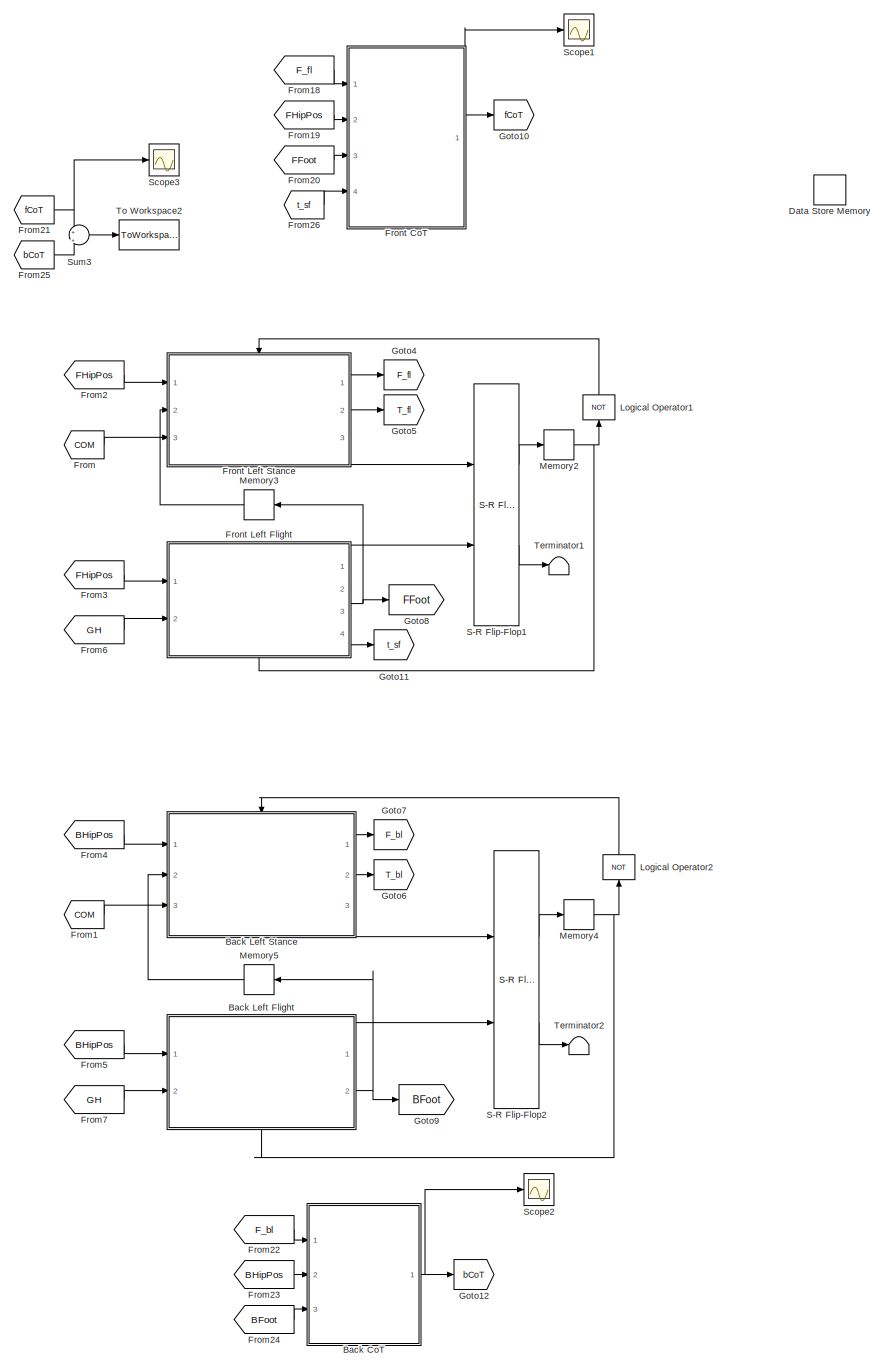
[diagram: root canvas - part 1/2, right side, full height]
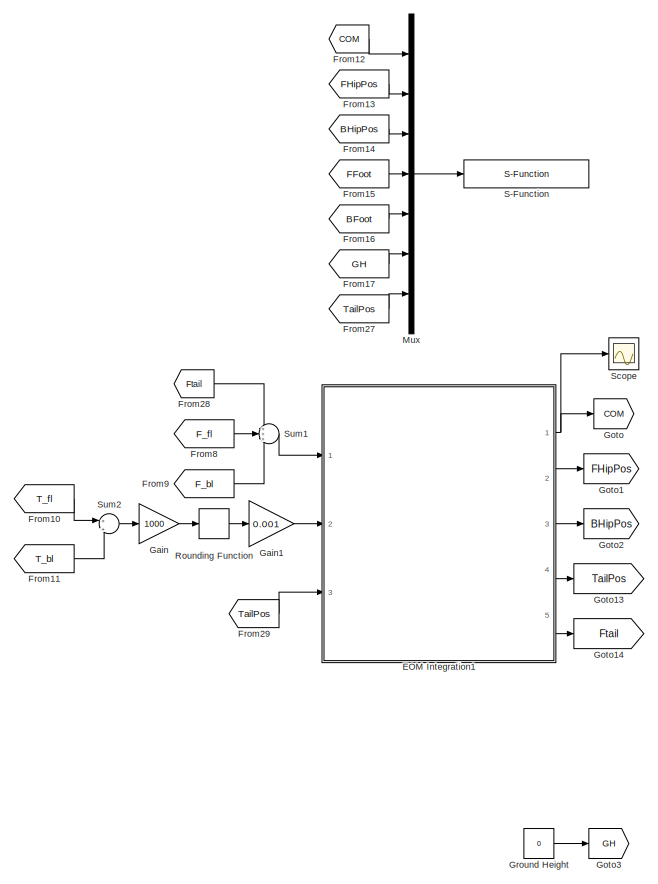
[diagram: root canvas - part 2/2, middle left region]
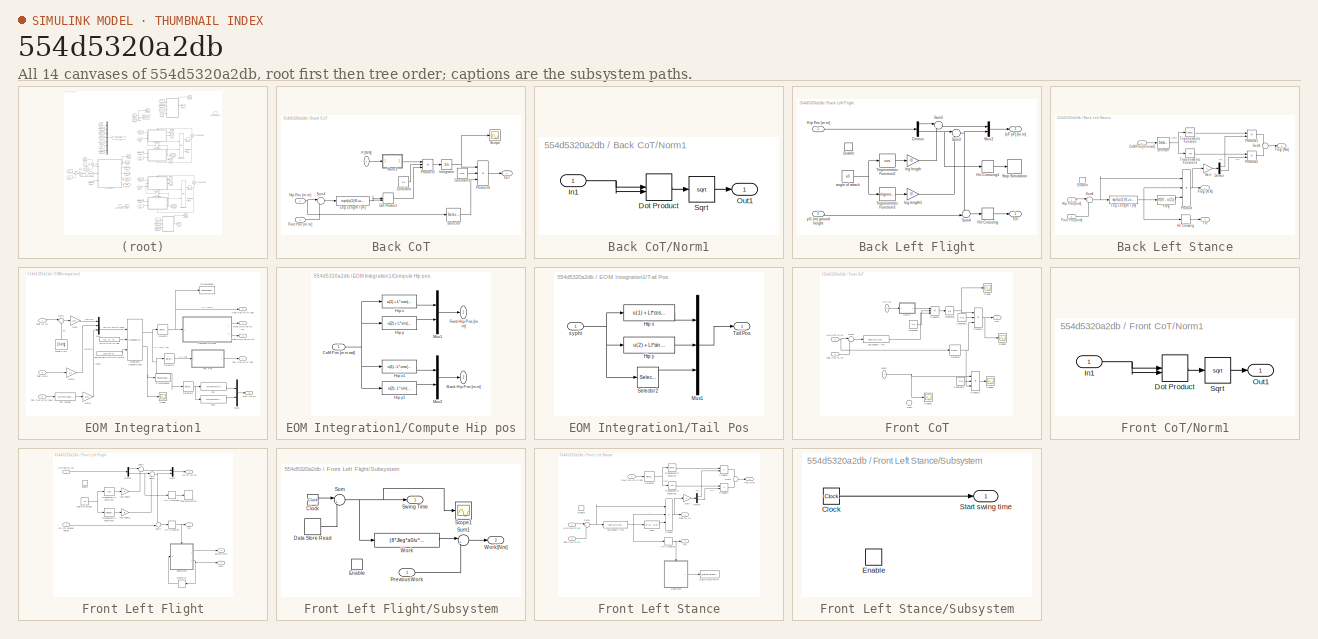
[diagram: thumbnail index - all 14 canvases of the model, root first then tree order]
MODEL slx_554d5320a2db
KIND model
CONFIG AbsTol = 1e-6
CONFIG FixedStep = auto
CONFIG MaxStep = 1e-3
CONFIG MinStep = auto
CONFIG RelTol = 1e-4
CONFIG SampleTimeConstraint = Unconstrained
CONFIG Solver = ode45
CONFIG SolverMode = Auto
CONFIG SolverName = ode45
CONFIG StartTime = 0.0
CONFIG StopTime = 100
BLOCK [SubSystem] Back CoT
  Ports = [3, 1]
  RequestExecContextInheritance = off
BLOCK [Outport] Back CoT/CoT
  IconDisplay = Port number
BLOCK [Constant] Back CoT/Constant
  Value = 0.5
BLOCK [Constant] Back CoT/Constant1
  Value = m*g
BLOCK [DotProduct] Back CoT/Dot Product
  OutDataTypeStr = Inherit: Inherit via internal rule
BLOCK [Inport] Back CoT/F [N N]
  IconDisplay = Port number
BLOCK [Inport] Back CoT/Foot Pos [m m]
  IconDisplay = Port number
  Port = 3
BLOCK [Inport] Back CoT/Hip Pos [m m]
  IconDisplay = Port number
  Port = 2
BLOCK [Integrator] Back CoT/Integrator
  Ports = [1, 1]
BLOCK [Fcn] Back CoT/Leg Length l [m]
  Expr = sqrt(u(1)^2+u(2)^2)
BLOCK [SubSystem] Back CoT/Norm1
  Ports = [1, 1]
  RequestExecContextInheritance = off
BLOCK [DotProduct] Back CoT/Norm1/Dot Product
  OutDataTypeStr = Inherit: Inherit via internal rule
BLOCK [Inport] Back CoT/Norm1/In1
  IconDisplay = Port number
BLOCK [Outport] Back CoT/Norm1/Out1
  IconDisplay = Port number
BLOCK [Sqrt] Back CoT/Norm1/Sqrt
BLOCK [Product] Back CoT/Product3
  InputSameDT = off
  Inputs = 3
  OutDataTypeStr = Inherit: Inherit via internal rule
  Ports = [3, 1]
  RndMeth = Floor
  SaturateOnIntegerOverflow = off
BLOCK [Product] Back CoT/Product4
  InputSameDT = off
  Inputs = *//
  OutDataTypeStr = Inherit: Inherit via internal rule
  Ports = [3, 1]
  RndMeth = Floor
  SaturateOnIntegerOverflow = off
BLOCK [Scope] Back CoT/Scope
  Floating = off
  LimitDataPoints = off
  NumInputPorts = 1
  Ports = [1]
  SaveName = ScopeData3
BLOCK [Selector] Back CoT/Selector
  Indices = [1]
  InputPortWidth = 2
  Ports = [1, 1]
BLOCK [Sum] Back CoT/Sum4
  IconShape = round
  InputSameDT = off
  Inputs = |+-
  OutDataTypeStr = Inherit: Inherit via internal rule
  Ports = [2, 1]
  SaturateOnIntegerOverflow = off
BLOCK [SubSystem] Back Left Flight
  Ports = [2, 2, 1]
  RequestExecContextInheritance = off
BLOCK [Outport] Back Left Flight/(xF yF) [m m]
  AttributesFormatString = %<OutputWhenDisabled>
  IconDisplay = Port number
  InitialOutput = [0 0]
  Port = 2
BLOCK [Demux] Back Left Flight/Demux
  DisplayOption = bar
  Outputs = 2
  Ports = [1, 2]
BLOCK [EnablePort] Back Left Flight/Enable
  Ports = []
  StatesWhenEnabling = reset
BLOCK [Inport] Back Left Flight/Hip Pos [m m]
  IconDisplay = Port number
BLOCK [HitCross] Back Left Flight/Hit Crossing
  HitCrossingDirection = falling
  Ports = [1, 1]
BLOCK [HitCross] Back Left Flight/Hit Crossing1
  HitCrossingDirection = falling
  Ports = [1, 1]
BLOCK [Mux] Back Left Flight/Mux2
  DisplayOption = bar
  Inputs = 2
  Ports = [2, 1]
BLOCK [Stop] Back Left Flight/Stop Simulation
BLOCK [Sum] Back Left Flight/Sum2
  IconShape = round
  InputSameDT = off
  Inputs = |++
  OutDataTypeStr = Inherit: Inherit via internal rule
  Ports = [2, 1]
  SaturateOnIntegerOverflow = off
BLOCK [Sum] Back Left Flight/Sum3
  IconShape = round
  InputSameDT = off
  Inputs = |+-
  OutDataTypeStr = Inherit: Inherit via internal rule
  Ports = [2, 1]
  SaturateOnIntegerOverflow = off
BLOCK [Sum] Back Left Flight/Sum4
  IconShape = round
  InputSameDT = off
  Inputs = +-|
  OutDataTypeStr = Inherit: Inherit via internal rule
  Ports = [2, 1]
  SaturateOnIntegerOverflow = off
BLOCK [Outport] Back Left Flight/TO!
  AttributesFormatString = %<OutputWhenDisabled>
  IconDisplay = Port number
  InitialOutput = 0
  OutputWhenDisabled = reset
BLOCK [Trigonometry] Back Left Flight/Trigonometric Function2
  Operator = cos
  Ports = [1, 1]
BLOCK [Trigonometry] Back Left Flight/Trigonometric Function3
  Ports = [1, 1]
BLOCK [Constant] Back Left Flight/angle of attack
  Value = a0
BLOCK [Gain] Back Left Flight/leg length
  Gain = l0
  OutDataTypeStr = Inherit: Inherit via internal rule
  ParamDataTypeStr = Inherit: Inherit via internal rule
  SaturateOnIntegerOverflow = off
BLOCK [Gain] Back Left Flight/leg length1
  Gain = l0
  OutDataTypeStr = Inherit: Inherit via internal rule
  ParamDataTypeStr = Inherit: Inherit via internal rule
  SaturateOnIntegerOverflow = off
BLOCK [Inport] Back Left Flight/yG [m] ground height
  IconDisplay = Port number
  Port = 2
BLOCK [SubSystem] Back Left Stance
  Ports = [3, 3, 1]
  RequestExecContextInheritance = off
BLOCK [Inport] Back Left Stance/CoM Pos [m m rad]
  IconDisplay = Port number
  Port = 3
BLOCK [Demux] Back Left Stance/Demux
  DisplayOption = bar
  Outputs = 2
  Ports = [1, 2]
BLOCK [EnablePort] Back Left Stance/Enable
  Ports = []
  StatesWhenEnabling = reset
BLOCK [Fcn] Back Left Stance/Fleg
  Expr = k*(l0 - u(1))
BLOCK [Outport] Back Left Stance/Fleg [N N]
  AttributesFormatString = %<OutputWhenDisabled>
  IconDisplay = Port number
  InitialOutput = [0 0]
  OutputWhenDisabled = reset
BLOCK [Inport] Back Left Stance/Foot Pos [m m]
  IconDisplay = Port number
  Port = 2
BLOCK [Gain] Back Left Stance/Gain
  Gain = -L
  OutDataTypeStr = Inherit: Inherit via internal rule
  ParamDataTypeStr = Inherit: Inherit via internal rule
  SaturateOnIntegerOverflow = off
BLOCK [Inport] Back Left Stance/Hip Pos [m m]
  IconDisplay = Port number
BLOCK [HitCross] Back Left Stance/Hit Crossing
  HitCrossingDirection = rising
  HitCrossingOffset = l0
  Ports = [1, 1]
BLOCK [Fcn] Back Left Stance/Leg Length l [m]
  Expr = sqrt(u(1)^2+u(2)^2)
BLOCK [Product] Back Left Stance/Product
  InputSameDT = off
  Inputs = */*
  OutDataTypeStr = Inherit: Inherit via internal rule
  Ports = [3, 1]
  RndMeth = Floor
  SaturateOnIntegerOverflow = off
BLOCK [Product] Back Left Stance/Product1
  InputSameDT = off
  OutDataTypeStr = Inherit: Inherit via internal rule
  Ports = [2, 1]
  RndMeth = Floor
  SaturateOnIntegerOverflow = off
BLOCK [Product] Back Left Stance/Product2
  InputSameDT = off
  OutDataTypeStr = Inherit: Inherit via internal rule
  Ports = [2, 1]
  RndMeth = Floor
  SaturateOnIntegerOverflow = off
BLOCK [Selector] Back Left Stance/Selector
  Indices = [3]
  InputPortWidth = 3
  Ports = [1, 1]
BLOCK [Sum] Back Left Stance/Sum1
  IconShape = round
  InputSameDT = off
  Inputs = +|+
  OutDataTypeStr = Inherit: Inherit via internal rule
  Ports = [2, 1]
  SaturateOnIntegerOverflow = off
BLOCK [Sum] Back Left Stance/Sum4
  IconShape = round
  InputSameDT = off
  Inputs = |+-
  OutDataTypeStr = Inherit: Inherit via internal rule
  Ports = [2, 1]
  SaturateOnIntegerOverflow = off
BLOCK [Outport] Back Left Stance/TO!
  AttributesFormatString = %<OutputWhenDisabled>
  IconDisplay = Port number
  InitialOutput = [0]
  OutputWhenDisabled = reset
  Port = 3
BLOCK [Outport] Back Left Stance/Tleg [Nm]
  AttributesFormatString = %<OutputWhenDisabled>
  IconDisplay = Port number
  InitialOutput = [0]
  OutputWhenDisabled = reset
  Port = 2
BLOCK [Trigonometry] Back Left Stance/Trigonometric Function
  Ports = [1, 1]
BLOCK [Trigonometry] Back Left Stance/Trigonometric Function1
  Operator = cos
  Ports = [1, 1]
BLOCK [DataStoreMemory] Data Store Memory
  DataStoreName = Swing_time
  ReadBeforeWriteMsg = warning
  WriteAfterReadMsg = warning
  WriteAfterWriteMsg = warning
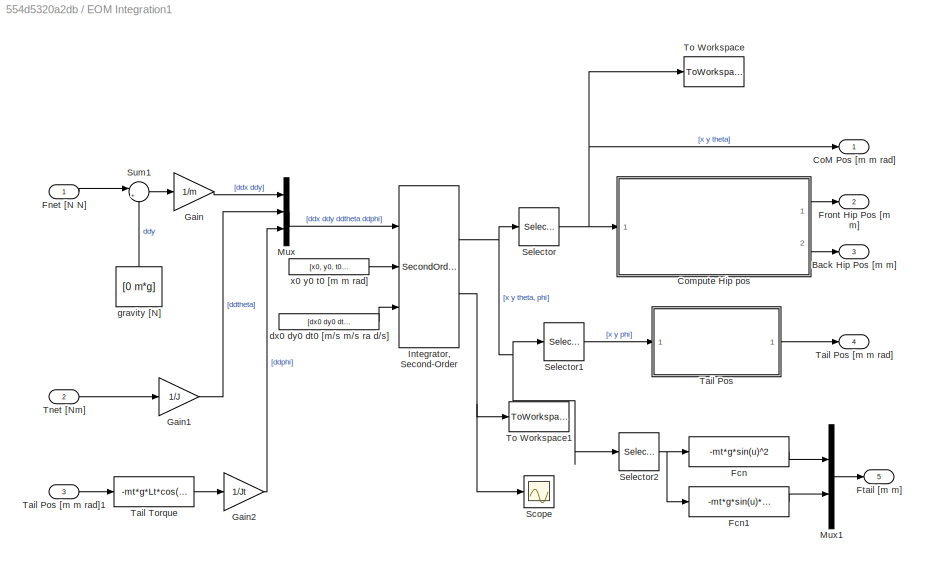
BLOCK [SubSystem] EOM Integration1
  Ports = [3, 5]
  RequestExecContextInheritance = off
BLOCK [Outport] EOM Integration1/Back Hip Pos [m m]
  IconDisplay = Port number
  Port = 3
BLOCK [Outport] EOM Integration1/CoM Pos [m m rad]
  IconDisplay = Port number
BLOCK [SubSystem] EOM Integration1/Compute Hip pos
  Ports = [1, 2]
  RequestExecContextInheritance = off
BLOCK [Outport] EOM Integration1/Compute Hip pos/Back Hip Pos [m m]
  IconDisplay = Port number
  Port = 2
BLOCK [Inport] EOM Integration1/Compute Hip pos/CoM Pos [m m rad]
  IconDisplay = Port number
BLOCK [Outport] EOM Integration1/Compute Hip pos/Front Hip Pos [m m]
  IconDisplay = Port number
BLOCK [Fcn] EOM Integration1/Compute Hip pos/Hip x
  Expr = u(1) + L*cos(u(3))
BLOCK [Fcn] EOM Integration1/Compute Hip pos/Hip x1
  Expr = u(1) - L*cos(u(3))
BLOCK [Fcn] EOM Integration1/Compute Hip pos/Hip y
  Expr = u(2) + L*sin(u(3))
BLOCK [Fcn] EOM Integration1/Compute Hip pos/Hip y1
  Expr = u(2) - L*sin(u(3))
BLOCK [Mux] EOM Integration1/Compute Hip pos/Mux1
  DisplayOption = bar
  Inputs = 2
  Ports = [2, 1]
BLOCK [Mux] EOM Integration1/Compute Hip pos/Mux2
  DisplayOption = bar
  Inputs = 2
  Ports = [2, 1]
BLOCK [Fcn] EOM Integration1/Fcn
  Expr = -mt*g*sin(u)^2
BLOCK [Fcn] EOM Integration1/Fcn1
  Expr = -mt*g*sin(u)*cos(u)
BLOCK [Inport] EOM Integration1/Fnet [N N]
  IconDisplay = Port number
BLOCK [Outport] EOM Integration1/Front Hip Pos [m m]
  IconDisplay = Port number
  Port = 2
BLOCK [Outport] EOM Integration1/Ftail [m m]
  IconDisplay = Port number
  Port = 5
BLOCK [Gain] EOM Integration1/Gain
  Gain = 1/m
  OutDataTypeStr = Inherit: Inherit via internal rule
  ParamDataTypeStr = Inherit: Inherit via internal rule
  SaturateOnIntegerOverflow = off
BLOCK [Gain] EOM Integration1/Gain1
  Gain = 1/J
  OutDataTypeStr = Inherit: Inherit via internal rule
  ParamDataTypeStr = Inherit: Inherit via internal rule
  SaturateOnIntegerOverflow = off
BLOCK [Gain] EOM Integration1/Gain2
  Gain = 1/Jt
  OutDataTypeStr = Inherit: Inherit via internal rule
  ParamDataTypeStr = Inherit: Inherit via internal rule
  SaturateOnIntegerOverflow = off
BLOCK [SecondOrderIntegrator] EOM Integration1/Integrator, Second-Order
  ICSourceDXDT = external
  ICSourceX = external
  Ports = [3, 2]
BLOCK [Mux] EOM Integration1/Mux
  DisplayOption = bar
  Inputs = 3
  Ports = [3, 1]
BLOCK [Mux] EOM Integration1/Mux1
  DisplayOption = bar
  Inputs = 2
  Ports = [2, 1]
BLOCK [Scope] EOM Integration1/Scope
  Floating = off
  LimitDataPoints = off
  NumInputPorts = 1
  Ports = [1]
  SaveName = ScopeData2
  TimeRange = 3.298211913921595
  YMax = 10
  YMin = -10
  ZoomMode = yonly
BLOCK [Selector] EOM Integration1/Selector
  Indices = [1 2 3]
  InputPortWidth = 4
  Ports = [1, 1]
BLOCK [Selector] EOM Integration1/Selector1
  Indices = [1 2 4]
  InputPortWidth = 4
  Ports = [1, 1]
BLOCK [Selector] EOM Integration1/Selector2
  Indices = [4]
  InputPortWidth = 4
  Ports = [1, 1]
BLOCK [Sum] EOM Integration1/Sum1
  IconShape = round
  InputSameDT = off
  Inputs = |+-
  OutDataTypeStr = Inherit: Inherit via internal rule
  Ports = [2, 1]
  SaturateOnIntegerOverflow = off
BLOCK [SubSystem] EOM Integration1/Tail Pos
  Ports = [1, 1]
  RequestExecContextInheritance = off
BLOCK [Outport] EOM Integration1/Tail Pos [m m rad]
  IconDisplay = Port number
  Port = 4
BLOCK [Inport] EOM Integration1/Tail Pos [m m rad]1
  IconDisplay = Port number
  Port = 3
BLOCK [Fcn] EOM Integration1/Tail Pos/Hip x
  Expr = u(1) + Lt*cos(u(3))
BLOCK [Fcn] EOM Integration1/Tail Pos/Hip y
  Expr = u(2) + Lt*sin(u(3))
BLOCK [Mux] EOM Integration1/Tail Pos/Mux1
  DisplayOption = bar
  Inputs = 3
  Ports = [3, 1]
BLOCK [Selector] EOM Integration1/Tail Pos/Selector2
  Indices = [3]
  InputPortWidth = 3
  Ports = [1, 1]
BLOCK [Outport] EOM Integration1/Tail Pos/Tail Pos
  IconDisplay = Port number
BLOCK [Inport] EOM Integration1/Tail Pos/x y phi
  IconDisplay = Port number
BLOCK [Fcn] EOM Integration1/Tail Torque
  Expr = -mt*g*Lt*cos(u(3))
BLOCK [Inport] EOM Integration1/Tnet [Nm]
  IconDisplay = Port number
  Port = 2
BLOCK [ToWorkspace] EOM Integration1/To Workspace
  FixptAsFi = on
  MaxDataPoints = inf
  Ports = [1]
  SampleTime = -1
  Save2DSignal = 3-D array (concatenate along third dimension)
  VariableName = pos
BLOCK [ToWorkspace] EOM Integration1/To Workspace1
  FixptAsFi = on
  MaxDataPoints = inf
  Ports = [1]
  SampleTime = -1
  Save2DSignal = 3-D array (concatenate along third dimension)
  VariableName = vel
BLOCK [Constant] EOM Integration1/dx0 dy0 dt0 [m//s m//s ra d//s]
  Value = [dx0 dy0 dt0 dphi0]
BLOCK [Constant] EOM Integration1/gravity  [N]
  Value = [0 m*g]
BLOCK [Constant] EOM Integration1/x0 y0 t0 [m m rad]
  Value = [x0, y0, t0, phi0]
BLOCK [From] From
  GotoTag = COM
BLOCK [From] From1
  GotoTag = COM
BLOCK [From] From10
  GotoTag = T_fl
BLOCK [From] From11
  GotoTag = T_bl
BLOCK [From] From12
  GotoTag = COM
BLOCK [From] From13
  GotoTag = FHipPos
BLOCK [From] From14
  GotoTag = BHipPos
BLOCK [From] From15
  GotoTag = FFoot
BLOCK [From] From16
  GotoTag = BFoot
BLOCK [From] From17
  GotoTag = GH
BLOCK [From] From18
  GotoTag = F_fl
BLOCK [From] From19
  GotoTag = FHipPos
BLOCK [From] From2
  GotoTag = FHipPos
BLOCK [From] From20
  GotoTag = FFoot
BLOCK [From] From21
  GotoTag = fCoT
BLOCK [From] From22
  GotoTag = F_bl
BLOCK [From] From23
  GotoTag = BHipPos
BLOCK [From] From24
  GotoTag = BFoot
BLOCK [From] From25
  GotoTag = bCoT
BLOCK [From] From26
  GotoTag = t_sf
BLOCK [From] From27
  GotoTag = TailPos
BLOCK [From] From28
  GotoTag = Ftail
BLOCK [From] From29
  GotoTag = TailPos
BLOCK [From] From3
  GotoTag = FHipPos
BLOCK [From] From4
  GotoTag = BHipPos
BLOCK [From] From5
  GotoTag = BHipPos
BLOCK [From] From6
  GotoTag = GH
BLOCK [From] From7
  GotoTag = GH
BLOCK [From] From8
  GotoTag = F_fl
BLOCK [From] From9
  GotoTag = F_bl
BLOCK [SubSystem] Front CoT
  Ports = [4, 1]
  RequestExecContextInheritance = off
BLOCK [Outport] Front CoT/CoT
  IconDisplay = Port number
BLOCK [Constant] Front CoT/Constant
  Value = 0.5
BLOCK [Constant] Front CoT/Constant1
  Value = m*g
BLOCK [Constant] Front CoT/Constant2
  Value = m*g
BLOCK [Inport] Front CoT/F [N N]
  IconDisplay = Port number
BLOCK [Inport] Front CoT/Foot Pos [m m]
  IconDisplay = Port number
  Port = 3
BLOCK [Inport] Front CoT/Hip Pos [m m]
  IconDisplay = Port number
  Port = 2
BLOCK [Integrator] Front CoT/Integrator
  Ports = [1, 1]
BLOCK [Fcn] Front CoT/Leg Length l [m]
  Expr = sqrt(u(1)^2+u(2)^2)
BLOCK [SubSystem] Front CoT/Norm1
  Ports = [1, 1]
  RequestExecContextInheritance = off
BLOCK [DotProduct] Front CoT/Norm1/Dot Product
  OutDataTypeStr = Inherit: Inherit via internal rule
BLOCK [Inport] Front CoT/Norm1/In1
  IconDisplay = Port number
BLOCK [Outport] Front CoT/Norm1/Out1
  IconDisplay = Port number
BLOCK [Sqrt] Front CoT/Norm1/Sqrt
BLOCK [Product] Front CoT/Product1
  InputSameDT = off
  Inputs = *//
  OutDataTypeStr = Inherit: Inherit via internal rule
  Ports = [3, 1]
  RndMeth = Floor
  SaturateOnIntegerOverflow = off
BLOCK [Product] Front CoT/Product3
  InputSameDT = off
  Inputs = 3
  OutDataTypeStr = Inherit: Inherit via internal rule
  Ports = [3, 1]
  RndMeth = Floor
  SaturateOnIntegerOverflow = off
BLOCK [Product] Front CoT/Product4
  InputSameDT = off
  Inputs = *//
  OutDataTypeStr = Inherit: Inherit via internal rule
  Ports = [3, 1]
  RndMeth = Floor
  SaturateOnIntegerOverflow = off
BLOCK [Scope] Front CoT/Scope
  Floating = off
  LimitDataPoints = off
  NumInputPorts = 1
  Ports = [1]
  SaveName = ScopeData3
BLOCK [Scope] Front CoT/Scope1
  Floating = off
  LimitDataPoints = off
  NumInputPorts = 1
  Ports = [1]
  SaveName = ScopeData8
BLOCK [Scope] Front CoT/Scope2
  Floating = off
  LimitDataPoints = off
  NumInputPorts = 1
  Ports = [1]
  SaveName = ScopeData9
BLOCK [Scope] Front CoT/Scope3
  Floating = off
  LimitDataPoints = off
  NumInputPorts = 1
  Ports = [1]
  SaveName = ScopeData10
BLOCK [Selector] Front CoT/Selector
  Indices = [1]
  InputPortWidth = 2
  Ports = [1, 1]
BLOCK [Sum] Front CoT/Sum
  IconShape = round
  InputSameDT = off
  Inputs = |++
  OutDataTypeStr = Inherit: Inherit via internal rule
  Ports = [2, 1]
  SaturateOnIntegerOverflow = off
BLOCK [Sum] Front CoT/Sum4
  IconShape = round
  InputSameDT = off
  Inputs = |+-
  OutDataTypeStr = Inherit: Inherit via internal rule
  Ports = [2, 1]
  SaturateOnIntegerOverflow = off
BLOCK [Inport] Front CoT/Work
  IconDisplay = Port number
  Port = 4
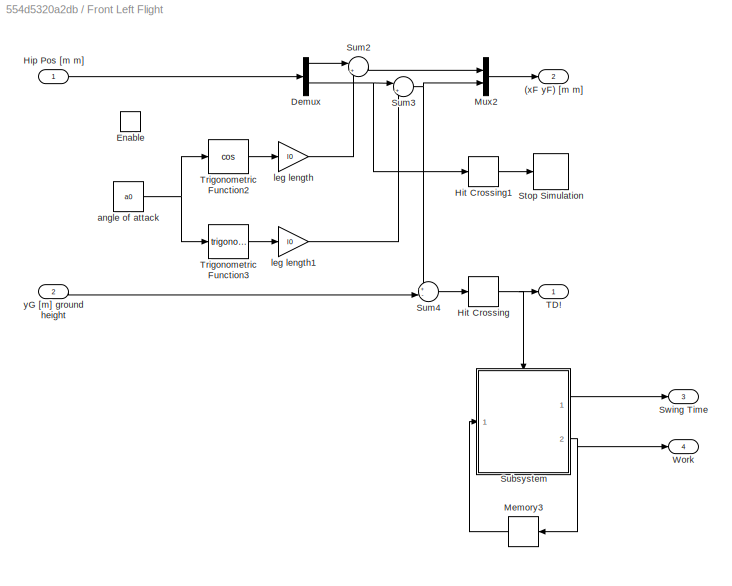
BLOCK [SubSystem] Front Left Flight
  Ports = [2, 4, 1]
  RequestExecContextInheritance = off
BLOCK [Outport] Front Left Flight/(xF yF) [m m]
  AttributesFormatString = %<OutputWhenDisabled>
  IconDisplay = Port number
  InitialOutput = [0 0]
  Port = 2
BLOCK [Demux] Front Left Flight/Demux
  DisplayOption = bar
  Outputs = 2
  Ports = [1, 2]
BLOCK [EnablePort] Front Left Flight/Enable
  Ports = []
  StatesWhenEnabling = reset
BLOCK [Inport] Front Left Flight/Hip Pos [m m]
  IconDisplay = Port number
BLOCK [HitCross] Front Left Flight/Hit Crossing
  HitCrossingDirection = falling
  Ports = [1, 1]
BLOCK [HitCross] Front Left Flight/Hit Crossing1
  HitCrossingDirection = falling
  Ports = [1, 1]
BLOCK [Memory] Front Left Flight/Memory3
  X0 = [(x0 - xrf0) (y0 - yrf0) ]
BLOCK [Mux] Front Left Flight/Mux2
  DisplayOption = bar
  Inputs = 2
  Ports = [2, 1]
BLOCK [Stop] Front Left Flight/Stop Simulation
BLOCK [SubSystem] Front Left Flight/Subsystem
  Ports = [1, 2, 1]
  RequestExecContextInheritance = off
BLOCK [Clock] Front Left Flight/Subsystem/Clock
BLOCK [DataStoreRead] Front Left Flight/Subsystem/Data Store Read
  DataStoreName = Swing_time
  Ports = [0, 1]
BLOCK [EnablePort] Front Left Flight/Subsystem/Enable
  Ports = []
  StatesWhenEnabling = reset
BLOCK [Inport] Front Left Flight/Subsystem/Previous Work
  IconDisplay = Port number
BLOCK [Scope] Front Left Flight/Subsystem/Scope1
  Floating = off
  LimitDataPoints = off
  NumInputPorts = 1
  Ports = [1]
  SaveName = ScopeData11
  ZoomMode = yonly
BLOCK [Sum] Front Left Flight/Subsystem/Sum
  IconShape = round
  InputSameDT = off
  Inputs = |+-
  OutDataTypeStr = Inherit: Inherit via internal rule
  Ports = [2, 1]
  SaturateOnIntegerOverflow = off
BLOCK [Sum] Front Left Flight/Subsystem/Sum1
  IconShape = round
  InputSameDT = off
  Inputs = |++
  OutDataTypeStr = Inherit: Inherit via internal rule
  Ports = [2, 1]
  SaturateOnIntegerOverflow = off
BLOCK [Outport] Front Left Flight/Subsystem/Swing Time
  AttributesFormatString = %<OutputWhenDisabled>
  IconDisplay = Port number
  InitialOutput = 0
  OutputWhenDisabled = reset
BLOCK [Fcn] Front Left Flight/Subsystem/Work
  Expr = (8*Jleg*a0/u^2)*a0*2
BLOCK [Outport] Front Left Flight/Subsystem/Work [Nm]
  AttributesFormatString = %<OutputWhenDisabled>
  IconDisplay = Port number
  InitialOutput = 0
  Port = 2
BLOCK [Sum] Front Left Flight/Sum2
  IconShape = round
  InputSameDT = off
  Inputs = |++
  OutDataTypeStr = Inherit: Inherit via internal rule
  Ports = [2, 1]
  SaturateOnIntegerOverflow = off
BLOCK [Sum] Front Left Flight/Sum3
  IconShape = round
  InputSameDT = off
  Inputs = |+-
  OutDataTypeStr = Inherit: Inherit via internal rule
  Ports = [2, 1]
  SaturateOnIntegerOverflow = off
BLOCK [Sum] Front Left Flight/Sum4
  IconShape = round
  InputSameDT = off
  Inputs = +-|
  OutDataTypeStr = Inherit: Inherit via internal rule
  Ports = [2, 1]
  SaturateOnIntegerOverflow = off
BLOCK [Outport] Front Left Flight/Swing Time
  AttributesFormatString = %<OutputWhenDisabled>
  IconDisplay = Port number
  InitialOutput = 0
  OutputWhenDisabled = reset
  Port = 3
BLOCK [Outport] Front Left Flight/TD!
  AttributesFormatString = %<OutputWhenDisabled>
  IconDisplay = Port number
  InitialOutput = 0
  OutputWhenDisabled = reset
BLOCK [Trigonometry] Front Left Flight/Trigonometric Function2
  Operator = cos
  Ports = [1, 1]
BLOCK [Trigonometry] Front Left Flight/Trigonometric Function3
  Ports = [1, 1]
BLOCK [Outport] Front Left Flight/Work
  AttributesFormatString = %<OutputWhenDisabled>
  IconDisplay = Port number
  InitialOutput = 0
  Port = 4
BLOCK [Constant] Front Left Flight/angle of attack
  Value = a0
BLOCK [Gain] Front Left Flight/leg length
  Gain = l0
  OutDataTypeStr = Inherit: Inherit via internal rule
  ParamDataTypeStr = Inherit: Inherit via internal rule
  SaturateOnIntegerOverflow = off
BLOCK [Gain] Front Left Flight/leg length1
  Gain = l0
  OutDataTypeStr = Inherit: Inherit via internal rule
  ParamDataTypeStr = Inherit: Inherit via internal rule
  SaturateOnIntegerOverflow = off
BLOCK [Inport] Front Left Flight/yG [m] ground height
  IconDisplay = Port number
  Port = 2
BLOCK [SubSystem] Front Left Stance
  Ports = [3, 3, 1]
  RequestExecContextInheritance = off
BLOCK [Inport] Front Left Stance/CoM Pos [m m rad]
  IconDisplay = Port number
  Port = 3
BLOCK [DataStoreWrite] Front Left Stance/Data Store Write
  DataStoreName = Swing_time
  Ports = [1]
BLOCK [Demux] Front Left Stance/Demux
  DisplayOption = bar
  Outputs = 2
  Ports = [1, 2]
BLOCK [EnablePort] Front Left Stance/Enable
  Ports = []
  StatesWhenEnabling = reset
BLOCK [Fcn] Front Left Stance/Fleg
  Expr = k*(l0 - u(1))
BLOCK [Outport] Front Left Stance/Fleg [N N]
  AttributesFormatString = %<OutputWhenDisabled>
  IconDisplay = Port number
  InitialOutput = [0 0]
  OutputWhenDisabled = reset
BLOCK [Inport] Front Left Stance/Foot Pos [m m]
  IconDisplay = Port number
  Port = 2
BLOCK [Gain] Front Left Stance/Gain
  Gain = L
  OutDataTypeStr = Inherit: Inherit via internal rule
  ParamDataTypeStr = Inherit: Inherit via internal rule
  SaturateOnIntegerOverflow = off
BLOCK [Inport] Front Left Stance/Hip Pos [m m]
  IconDisplay = Port number
BLOCK [HitCross] Front Left Stance/Hit Crossing
  HitCrossingDirection = rising
  HitCrossingOffset = l0
  Ports = [1, 1]
BLOCK [Fcn] Front Left Stance/Leg Length l [m]
  Expr = sqrt(u(1)^2+u(2)^2)
BLOCK [Product] Front Left Stance/Product
  InputSameDT = off
  Inputs = */*
  OutDataTypeStr = Inherit: Inherit via internal rule
  Ports = [3, 1]
  RndMeth = Floor
  SaturateOnIntegerOverflow = off
BLOCK [Product] Front Left Stance/Product1
  InputSameDT = off
  OutDataTypeStr = Inherit: Inherit via internal rule
  Ports = [2, 1]
  RndMeth = Floor
  SaturateOnIntegerOverflow = off
BLOCK [Product] Front Left Stance/Product2
  InputSameDT = off
  OutDataTypeStr = Inherit: Inherit via internal rule
  Ports = [2, 1]
  RndMeth = Floor
  SaturateOnIntegerOverflow = off
BLOCK [Selector] Front Left Stance/Selector
  Indices = [3]
  InputPortWidth = 3
  Ports = [1, 1]
BLOCK [SubSystem] Front Left Stance/Subsystem
  Ports = [0, 1, 1]
  RequestExecContextInheritance = off
BLOCK [Clock] Front Left Stance/Subsystem/Clock
BLOCK [EnablePort] Front Left Stance/Subsystem/Enable
  Ports = []
  StatesWhenEnabling = reset
BLOCK [Outport] Front Left Stance/Subsystem/Start swing time
  AttributesFormatString = %<OutputWhenDisabled>
  IconDisplay = Port number
  InitialOutput = 0
BLOCK [Sum] Front Left Stance/Sum1
  IconShape = round
  InputSameDT = off
  Inputs = +|+
  OutDataTypeStr = Inherit: Inherit via internal rule
  Ports = [2, 1]
  SaturateOnIntegerOverflow = off
BLOCK [Sum] Front Left Stance/Sum4
  IconShape = round
  InputSameDT = off
  Inputs = |+-
  OutDataTypeStr = Inherit: Inherit via internal rule
  Ports = [2, 1]
  SaturateOnIntegerOverflow = off
BLOCK [Outport] Front Left Stance/TO!
  AttributesFormatString = %<OutputWhenDisabled>
  IconDisplay = Port number
  InitialOutput = [0]
  OutputWhenDisabled = reset
  Port = 3
BLOCK [Outport] Front Left Stance/Tleg [Nm]
  AttributesFormatString = %<OutputWhenDisabled>
  IconDisplay = Port number
  InitialOutput = [0]
  OutputWhenDisabled = reset
  Port = 2
BLOCK [Trigonometry] Front Left Stance/Trigonometric Function
  Ports = [1, 1]
BLOCK [Trigonometry] Front Left Stance/Trigonometric Function1
  Operator = cos
  Ports = [1, 1]
BLOCK [Gain] Gain
  Gain = 1000
  OutDataTypeStr = Inherit: Inherit via internal rule
  ParamDataTypeStr = Inherit: Inherit via internal rule
  SaturateOnIntegerOverflow = off
BLOCK [Gain] Gain1
  Gain = 0.001
  OutDataTypeStr = Inherit: Inherit via internal rule
  ParamDataTypeStr = Inherit: Inherit via internal rule
  SaturateOnIntegerOverflow = off
BLOCK [Goto] Goto
  GotoTag = COM
BLOCK [Goto] Goto1
  GotoTag = FHipPos
BLOCK [Goto] Goto10
  GotoTag = fCoT
BLOCK [Goto] Goto11
  GotoTag = t_sf
BLOCK [Goto] Goto12
  GotoTag = bCoT
BLOCK [Goto] Goto13
  GotoTag = TailPos
BLOCK [Goto] Goto14
  GotoTag = Ftail
BLOCK [Goto] Goto2
  GotoTag = BHipPos
BLOCK [Goto] Goto3
  GotoTag = GH
BLOCK [Goto] Goto4
  GotoTag = F_fl
BLOCK [Goto] Goto5
  GotoTag = T_fl
BLOCK [Goto] Goto6
  GotoTag = T_bl
BLOCK [Goto] Goto7
  GotoTag = F_bl
BLOCK [Goto] Goto8
  GotoTag = FFoot
BLOCK [Goto] Goto9
  GotoTag = BFoot
BLOCK [Constant] Ground Height
  Value = 0
BLOCK [Logic] Logical Operator1
  AllPortsSameDT = off
  Operator = NOT
  OutDataTypeStr = boolean
  Ports = [1, 1]
BLOCK [Logic] Logical Operator2
  AllPortsSameDT = off
  Operator = NOT
  OutDataTypeStr = boolean
  Ports = [1, 1]
BLOCK [Memory] Memory2
  X0 = 1
BLOCK [Memory] Memory3
  X0 = [(x0 - xrf0) (y0 - yrf0) ]
BLOCK [Memory] Memory4
  X0 = 1
BLOCK [Memory] Memory5
  X0 = [(x0 - xrb0) (y0 - yrb0)]
BLOCK [Mux] Mux
  DisplayOption = bar
  Inputs = 7
  Ports = [7, 1]
BLOCK [Rounding] Rounding Function
  Operator = round
BLOCK [S-Function] S-Function
  FunctionName = AnimQUADtail
  Parameters = 0.005
  Ports = [1]
BLOCK [Reference] S-R Flip-Flop1  REF=simulink_extras/Flip Flops/S-R
Flip-Flop
  Ports = [2, 2]
  SourceBlock = simulink_extras/Flip Flops/S-R\nFlip-Flop
  SourceType = SRFlipFlop
  initial_condition = 1
BLOCK [Reference] S-R Flip-Flop2  REF=simulink_extras/Flip Flops/S-R
Flip-Flop
  Ports = [2, 2]
  SourceBlock = simulink_extras/Flip Flops/S-R\nFlip-Flop
  SourceType = SRFlipFlop
  initial_condition = 1
BLOCK [Scope] Scope
  Floating = off
  LimitDataPoints = off
  NumInputPorts = 1
  Ports = [1]
  ZoomMode = yonly
BLOCK [Scope] Scope1
  Floating = off
  LimitDataPoints = off
  NumInputPorts = 1
  Ports = [1]
  SaveName = ScopeData1
BLOCK [Scope] Scope2
  Floating = off
  LimitDataPoints = off
  NumInputPorts = 1
  Ports = [1]
  SaveName = ScopeData6
BLOCK [Scope] Scope3
  Floating = off
  LimitDataPoints = off
  NumInputPorts = 1
  Ports = [1]
  SaveName = ScopeData7
BLOCK [Sum] Sum1
  IconShape = round
  InputSameDT = off
  Inputs = +++
  OutDataTypeStr = Inherit: Inherit via internal rule
  Ports = [3, 1]
  SaturateOnIntegerOverflow = off
BLOCK [Sum] Sum2
  IconShape = round
  InputSameDT = off
  Inputs = +|+
  OutDataTypeStr = Inherit: Inherit via internal rule
  Ports = [2, 1]
  SaturateOnIntegerOverflow = off
BLOCK [Sum] Sum3
  IconShape = round
  InputSameDT = off
  Inputs = +|+
  OutDataTypeStr = Inherit: Inherit via internal rule
  Ports = [2, 1]
  SaturateOnIntegerOverflow = off
BLOCK [Terminator] Terminator1
BLOCK [Terminator] Terminator2
BLOCK [ToWorkspace] To Workspace2
  FixptAsFi = on
  MaxDataPoints = inf
  Ports = [1]
  SampleTime = -1
  Save2DSignal = 3-D array (concatenate along third dimension)
  VariableName = CoTvec
LINE Back CoT/Constant1:1 -> Back CoT/Product4:2
LINE Back CoT/Constant:1 -> Back CoT/Product3:2
LINE Back CoT/Dot Product:1 -> Back CoT/Product3:3
LINE Back CoT/F [N N]:1 -> Back CoT/Norm1:1
LINE Back CoT/Foot Pos [m m]:1 -> Back CoT/Sum4:2
NET Back CoT/Hip Pos [m m]:1 -> Back CoT/Selector:1, Back CoT/Sum4:1
NET Back CoT/Integrator:1 -> Back CoT/Product4:1, Back CoT/Scope:1
NET Back CoT/Leg Length l [m]:1 -> Back CoT/Dot Product:1, Back CoT/Dot Product:2
LINE Back CoT/Norm1/Dot Product:1 -> Back CoT/Norm1/Sqrt:1
NET Back CoT/Norm1/In1:1 -> Back CoT/Norm1/Dot Product:1, Back CoT/Norm1/Dot Product:2
LINE Back CoT/Norm1/Sqrt:1 -> Back CoT/Norm1/Out1:1
LINE Back CoT/Norm1:1 -> Back CoT/Product3:1
LINE Back CoT/Product3:1 -> Back CoT/Integrator:1
LINE Back CoT/Product4:1 -> Back CoT/CoT:1
LINE Back CoT/Selector:1 -> Back CoT/Product4:3
LINE Back CoT/Sum4:1 -> Back CoT/Leg Length l [m]:1
NET Back CoT:1 -> Goto12:1, Scope2:1
LINE Back Left Flight/Demux:1 -> Back Left Flight/Sum2:1
NET Back Left Flight/Demux:2 -> Back Left Flight/Hit Crossing1:1, Back Left Flight/Sum3:1
LINE Back Left Flight/Hip Pos [m m]:1 -> Back Left Flight/Demux:1
LINE Back Left Flight/Hit Crossing1:1 -> Back Left Flight/Stop Simulation:1
LINE Back Left Flight/Hit Crossing:1 -> Back Left Flight/TO!:1
LINE Back Left Flight/Mux2:1 -> Back Left Flight/(xF yF) [m m]:1
LINE Back Left Flight/Sum2:1 -> Back Left Flight/Mux2:1
NET Back Left Flight/Sum3:1 -> Back Left Flight/Mux2:2, Back Left Flight/Sum4:1
LINE Back Left Flight/Sum4:1 -> Back Left Flight/Hit Crossing:1
LINE Back Left Flight/Trigonometric Function2:1 -> Back Left Flight/leg length:1
LINE Back Left Flight/Trigonometric Function3:1 -> Back Left Flight/leg length1:1
NET Back Left Flight/angle of attack:1 -> Back Left Flight/Trigonometric Function2:1, Back Left Flight/Trigonometric Function3:1
LINE Back Left Flight/leg length1:1 -> Back Left Flight/Sum3:2
LINE Back Left Flight/leg length:1 -> Back Left Flight/Sum2:2
LINE Back Left Flight/yG [m] ground height:1 -> Back Left Flight/Sum4:2
LINE Back Left Flight:1 -> S-R Flip-Flop2:2
NET Back Left Flight:2 -> Goto9:1, Memory5:1
LINE Back Left Stance/CoM Pos [m m rad]:1 -> Back Left Stance/Selector:1
LINE Back Left Stance/Demux:1 -> Back Left Stance/Product1:2
LINE Back Left Stance/Demux:2 -> Back Left Stance/Product2:2
LINE Back Left Stance/Fleg:1 -> Back Left Stance/Product:3
LINE Back Left Stance/Foot Pos [m m]:1 -> Back Left Stance/Sum4:2
LINE Back Left Stance/Gain:1 -> Back Left Stance/Demux:1
LINE Back Left Stance/Hip Pos [m m]:1 -> Back Left Stance/Sum4:1
LINE Back Left Stance/Hit Crossing:1 -> Back Left Stance/TO!:1
NET Back Left Stance/Leg Length l [m]:1 -> Back Left Stance/Fleg:1, Back Left Stance/Hit Crossing:1, Back Left Stance/Product:2
LINE Back Left Stance/Product1:1 -> Back Left Stance/Sum1:1
LINE Back Left Stance/Product2:1 -> Back Left Stance/Sum1:2
NET Back Left Stance/Product:1 -> Back Left Stance/Fleg [N N]:1, Back Left Stance/Gain:1
NET Back Left Stance/Selector:1 -> Back Left Stance/Trigonometric Function1:1, Back Left Stance/Trigonometric Function:1
LINE Back Left Stance/Sum1:1 -> Back Left Stance/Tleg [Nm]:1
NET Back Left Stance/Sum4:1 -> Back Left Stance/Leg Length l [m]:1, Back Left Stance/Product:1
LINE Back Left Stance/Trigonometric Function1:1 -> Back Left Stance/Product2:1
LINE Back Left Stance/Trigonometric Function:1 -> Back Left Stance/Product1:1
LINE Back Left Stance:1 -> Goto7:1
LINE Back Left Stance:2 -> Goto6:1
LINE Back Left Stance:3 -> S-R Flip-Flop2:1
NET EOM Integration1/Compute Hip pos/CoM Pos [m m rad]:1 -> EOM Integration1/Compute Hip pos/Hip x1:1, EOM Integration1/Compute Hip pos/Hip x:1, EOM Integration1/Compute Hip pos/Hip y1:1, EOM Integration1/Compute Hip pos/Hip y:1
LINE EOM Integration1/Compute Hip pos/Hip x1:1 -> EOM Integration1/Compute Hip pos/Mux2:1
LINE EOM Integration1/Compute Hip pos/Hip x:1 -> EOM Integration1/Compute Hip pos/Mux1:1
LINE EOM Integration1/Compute Hip pos/Hip y1:1 -> EOM Integration1/Compute Hip pos/Mux2:2
LINE EOM Integration1/Compute Hip pos/Hip y:1 -> EOM Integration1/Compute Hip pos/Mux1:2
LINE EOM Integration1/Compute Hip pos/Mux1:1 -> EOM Integration1/Compute Hip pos/Front Hip Pos [m m]:1
LINE EOM Integration1/Compute Hip pos/Mux2:1 -> EOM Integration1/Compute Hip pos/Back Hip Pos [m m]:1
LINE EOM Integration1/Compute Hip pos:1 -> EOM Integration1/Front Hip Pos [m m]:1
LINE EOM Integration1/Compute Hip pos:2 -> EOM Integration1/Back Hip Pos [m m]:1
LINE EOM Integration1/Fcn1:1 -> EOM Integration1/Mux1:2
LINE EOM Integration1/Fcn:1 -> EOM Integration1/Mux1:1
LINE EOM Integration1/Fnet [N N]:1 -> EOM Integration1/Sum1:1
LINE EOM Integration1/Gain1:1 -> EOM Integration1/Mux:2
LINE EOM Integration1/Gain2:1 -> EOM Integration1/Mux:3
LINE EOM Integration1/Gain:1 -> EOM Integration1/Mux:1
NET EOM Integration1/Integrator, Second-Order:1 -> EOM Integration1/Selector1:1, EOM Integration1/Selector2:1, EOM Integration1/Selector:1
NET EOM Integration1/Integrator, Second-Order:2 -> EOM Integration1/Scope:1, EOM Integration1/To Workspace1:1
LINE EOM Integration1/Mux1:1 -> EOM Integration1/Ftail [m m]:1
LINE EOM Integration1/Mux:1 -> EOM Integration1/Integrator, Second-Order:1
LINE EOM Integration1/Selector1:1 -> EOM Integration1/Tail Pos:1
NET EOM Integration1/Selector2:1 -> EOM Integration1/Fcn1:1, EOM Integration1/Fcn:1
NET EOM Integration1/Selector:1 -> EOM Integration1/CoM Pos [m m rad]:1, EOM Integration1/Compute Hip pos:1, EOM Integration1/To Workspace:1
LINE EOM Integration1/Sum1:1 -> EOM Integration1/Gain:1
LINE EOM Integration1/Tail Pos [m m rad]1:1 -> EOM Integration1/Tail Torque:1
LINE EOM Integration1/Tail Pos/Hip x:1 -> EOM Integration1/Tail Pos/Mux1:1
LINE EOM Integration1/Tail Pos/Hip y:1 -> EOM Integration1/Tail Pos/Mux1:2
LINE EOM Integration1/Tail Pos/Mux1:1 -> EOM Integration1/Tail Pos/Tail Pos:1
LINE EOM Integration1/Tail Pos/Selector2:1 -> EOM Integration1/Tail Pos/Mux1:3
NET EOM Integration1/Tail Pos/x y phi:1 -> EOM Integration1/Tail Pos/Hip x:1, EOM Integration1/Tail Pos/Hip y:1, EOM Integration1/Tail Pos/Selector2:1
LINE EOM Integration1/Tail Pos:1 -> EOM Integration1/Tail Pos [m m rad]:1
LINE EOM Integration1/Tail Torque:1 -> EOM Integration1/Gain2:1
LINE EOM Integration1/Tnet [Nm]:1 -> EOM Integration1/Gain1:1
LINE EOM Integration1/dx0 dy0 dt0 [m//s m//s ra d//s]:1 -> EOM Integration1/Integrator, Second-Order:3
LINE EOM Integration1/gravity  [N]:1 -> EOM Integration1/Sum1:2
LINE EOM Integration1/x0 y0 t0 [m m rad]:1 -> EOM Integration1/Integrator, Second-Order:2
NET EOM Integration1:1 -> Goto:1, Scope:1
LINE EOM Integration1:2 -> Goto1:1
LINE EOM Integration1:3 -> Goto2:1
LINE EOM Integration1:4 -> Goto13:1
LINE EOM Integration1:5 -> Goto14:1
LINE From10:1 -> Sum2:1
LINE From11:1 -> Sum2:2
LINE From12:1 -> Mux:1
LINE From13:1 -> Mux:2
LINE From14:1 -> Mux:3
LINE From15:1 -> Mux:4
LINE From16:1 -> Mux:5
LINE From17:1 -> Mux:6
LINE From18:1 -> Front CoT:1
LINE From19:1 -> Front CoT:2
LINE From1:1 -> Back Left Stance:3
LINE From20:1 -> Front CoT:3
NET From21:1 -> Scope3:1, Sum3:1
LINE From22:1 -> Back CoT:1
LINE From23:1 -> Back CoT:2
LINE From24:1 -> Back CoT:3
LINE From25:1 -> Sum3:2
LINE From26:1 -> Front CoT:4
LINE From27:1 -> Mux:7
LINE From28:1 -> Sum1:1
LINE From29:1 -> EOM Integration1:3
LINE From2:1 -> Front Left Stance:1
LINE From3:1 -> Front Left Flight:1
LINE From4:1 -> Back Left Stance:1
LINE From5:1 -> Back Left Flight:1
LINE From6:1 -> Front Left Flight:2
LINE From7:1 -> Back Left Flight:2
LINE From8:1 -> Sum1:2
LINE From9:1 -> Sum1:3
LINE From:1 -> Front Left Stance:3
LINE Front CoT/Constant1:1 -> Front CoT/Product4:2
LINE Front CoT/Constant2:1 -> Front CoT/Product1:2
LINE Front CoT/Constant:1 -> Front CoT/Product3:2
LINE Front CoT/F [N N]:1 -> Front CoT/Norm1:1
LINE Front CoT/Foot Pos [m m]:1 -> Front CoT/Sum4:2
NET Front CoT/Hip Pos [m m]:1 -> Front CoT/Selector:1, Front CoT/Sum4:1
NET Front CoT/Integrator:1 -> Front CoT/Product4:1, Front CoT/Scope:1
LINE Front CoT/Leg Length l [m]:1 -> Front CoT/Product3:3
LINE Front CoT/Norm1/Dot Product:1 -> Front CoT/Norm1/Sqrt:1
NET Front CoT/Norm1/In1:1 -> Front CoT/Norm1/Dot Product:1, Front CoT/Norm1/Dot Product:2
LINE Front CoT/Norm1/Sqrt:1 -> Front CoT/Norm1/Out1:1
LINE Front CoT/Norm1:1 -> Front CoT/Product3:1
LINE Front CoT/Product1:1 -> Front CoT/Scope1:1
LINE Front CoT/Product3:1 -> Front CoT/Integrator:1
NET Front CoT/Product4:1 -> Front CoT/CoT:1, Front CoT/Scope3:1
NET Front CoT/Selector:1 -> Front CoT/Product1:3, Front CoT/Product4:3
LINE Front CoT/Sum4:1 -> Front CoT/Leg Length l [m]:1
NET Front CoT/Work:1 -> Front CoT/Product1:1, Front CoT/Scope2:1
NET Front CoT:1 -> Goto10:1, Scope1:1
LINE Front Left Flight/Demux:1 -> Front Left Flight/Sum2:1
NET Front Left Flight/Demux:2 -> Front Left Flight/Hit Crossing1:1, Front Left Flight/Sum3:1
LINE Front Left Flight/Hip Pos [m m]:1 -> Front Left Flight/Demux:1
LINE Front Left Flight/Hit Crossing1:1 -> Front Left Flight/Stop Simulation:1
NET Front Left Flight/Hit Crossing:1 -> Front Left Flight/Subsystem:enable, Front Left Flight/TD!:1
LINE Front Left Flight/Memory3:1 -> Front Left Flight/Subsystem:1
LINE Front Left Flight/Mux2:1 -> Front Left Flight/(xF yF) [m m]:1
LINE Front Left Flight/Subsystem/Clock:1 -> Front Left Flight/Subsystem/Sum:1
LINE Front Left Flight/Subsystem/Data Store Read:1 -> Front Left Flight/Subsystem/Sum:2
LINE Front Left Flight/Subsystem/Previous Work:1 -> Front Left Flight/Subsystem/Sum1:2
LINE Front Left Flight/Subsystem/Sum1:1 -> Front Left Flight/Subsystem/Work [Nm]:1
NET Front Left Flight/Subsystem/Sum:1 -> Front Left Flight/Subsystem/Scope1:1, Front Left Flight/Subsystem/Swing Time:1, Front Left Flight/Subsystem/Work:1
LINE Front Left Flight/Subsystem/Work:1 -> Front Left Flight/Subsystem/Sum1:1
LINE Front Left Flight/Subsystem:1 -> Front Left Flight/Swing Time:1
NET Front Left Flight/Subsystem:2 -> Front Left Flight/Memory3:1, Front Left Flight/Work:1
LINE Front Left Flight/Sum2:1 -> Front Left Flight/Mux2:1
NET Front Left Flight/Sum3:1 -> Front Left Flight/Mux2:2, Front Left Flight/Sum4:1
LINE Front Left Flight/Sum4:1 -> Front Left Flight/Hit Crossing:1
LINE Front Left Flight/Trigonometric Function2:1 -> Front Left Flight/leg length:1
LINE Front Left Flight/Trigonometric Function3:1 -> Front Left Flight/leg length1:1
NET Front Left Flight/angle of attack:1 -> Front Left Flight/Trigonometric Function2:1, Front Left Flight/Trigonometric Function3:1
LINE Front Left Flight/leg length1:1 -> Front Left Flight/Sum3:2
LINE Front Left Flight/leg length:1 -> Front Left Flight/Sum2:2
LINE Front Left Flight/yG [m] ground height:1 -> Front Left Flight/Sum4:2
LINE Front Left Flight:1 -> S-R Flip-Flop1:2
NET Front Left Flight:2 -> Goto8:1, Memory3:1
LINE Front Left Flight:4 -> Goto11:1
LINE Front Left Stance/CoM Pos [m m rad]:1 -> Front Left Stance/Selector:1
LINE Front Left Stance/Demux:1 -> Front Left Stance/Product1:2
LINE Front Left Stance/Demux:2 -> Front Left Stance/Product2:2
LINE Front Left Stance/Fleg:1 -> Front Left Stance/Product:3
LINE Front Left Stance/Foot Pos [m m]:1 -> Front Left Stance/Sum4:2
LINE Front Left Stance/Gain:1 -> Front Left Stance/Demux:1
LINE Front Left Stance/Hip Pos [m m]:1 -> Front Left Stance/Sum4:1
NET Front Left Stance/Hit Crossing:1 -> Front Left Stance/Subsystem:enable, Front Left Stance/TO!:1
NET Front Left Stance/Leg Length l [m]:1 -> Front Left Stance/Fleg:1, Front Left Stance/Hit Crossing:1, Front Left Stance/Product:2
LINE Front Left Stance/Product1:1 -> Front Left Stance/Sum1:1
LINE Front Left Stance/Product2:1 -> Front Left Stance/Sum1:2
NET Front Left Stance/Product:1 -> Front Left Stance/Fleg [N N]:1, Front Left Stance/Gain:1
NET Front Left Stance/Selector:1 -> Front Left Stance/Trigonometric Function1:1, Front Left Stance/Trigonometric Function:1
LINE Front Left Stance/Subsystem/Clock:1 -> Front Left Stance/Subsystem/Start swing time:1
LINE Front Left Stance/Subsystem:1 -> Front Left Stance/Data Store Write:1
LINE Front Left Stance/Sum1:1 -> Front Left Stance/Tleg [Nm]:1
NET Front Left Stance/Sum4:1 -> Front Left Stance/Leg Length l [m]:1, Front Left Stance/Product:1
LINE Front Left Stance/Trigonometric Function1:1 -> Front Left Stance/Product2:1
LINE Front Left Stance/Trigonometric Function:1 -> Front Left Stance/Product1:1
LINE Front Left Stance:1 -> Goto4:1
LINE Front Left Stance:2 -> Goto5:1
LINE Front Left Stance:3 -> S-R Flip-Flop1:1
LINE Gain1:1 -> EOM Integration1:2
LINE Gain:1 -> Rounding Function:1
LINE Ground Height:1 -> Goto3:1
LINE Logical Operator1:1 -> Front Left Stance:enable
LINE Logical Operator2:1 -> Back Left Stance:enable
NET Memory2:1 -> Front Left Flight:enable, Logical Operator1:1
LINE Memory3:1 -> Front Left Stance:2
NET Memory4:1 -> Back Left Flight:enable, Logical Operator2:1
LINE Memory5:1 -> Back Left Stance:2
LINE Mux:1 -> S-Function:1
LINE Rounding Function:1 -> Gain1:1
LINE S-R Flip-Flop1:1 -> Memory2:1
LINE S-R Flip-Flop1:2 -> Terminator1:1
LINE S-R Flip-Flop2:1 -> Memory4:1
LINE S-R Flip-Flop2:2 -> Terminator2:1
LINE Sum1:1 -> EOM Integration1:1
LINE Sum2:1 -> Gain:1
LINE Sum3:1 -> To Workspace2:1
note: NET lines group one-source signal fan-out (src -> all destinations, sorted); 1:1 wires keep LINE
